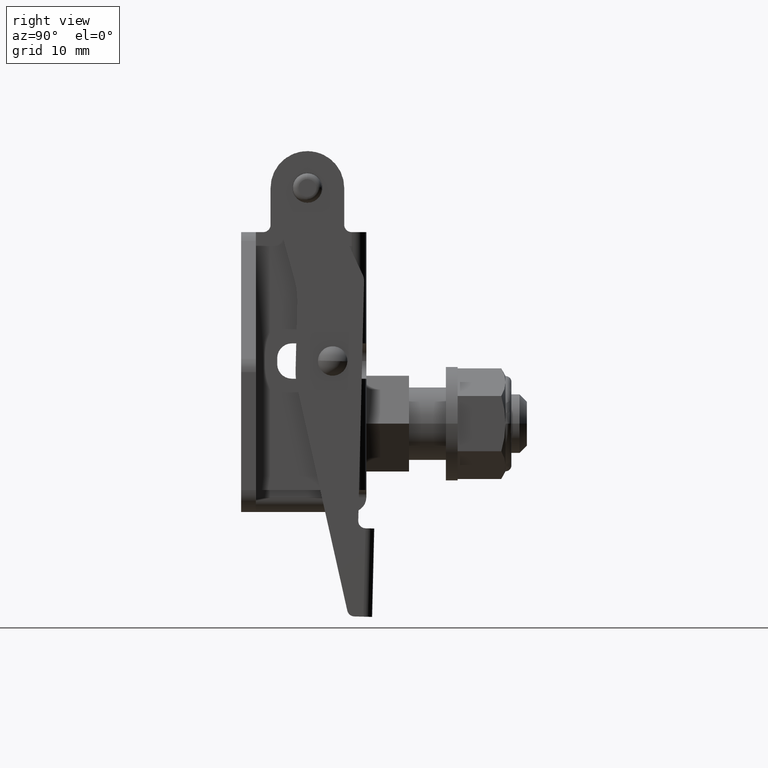
[diagram: clean part render]
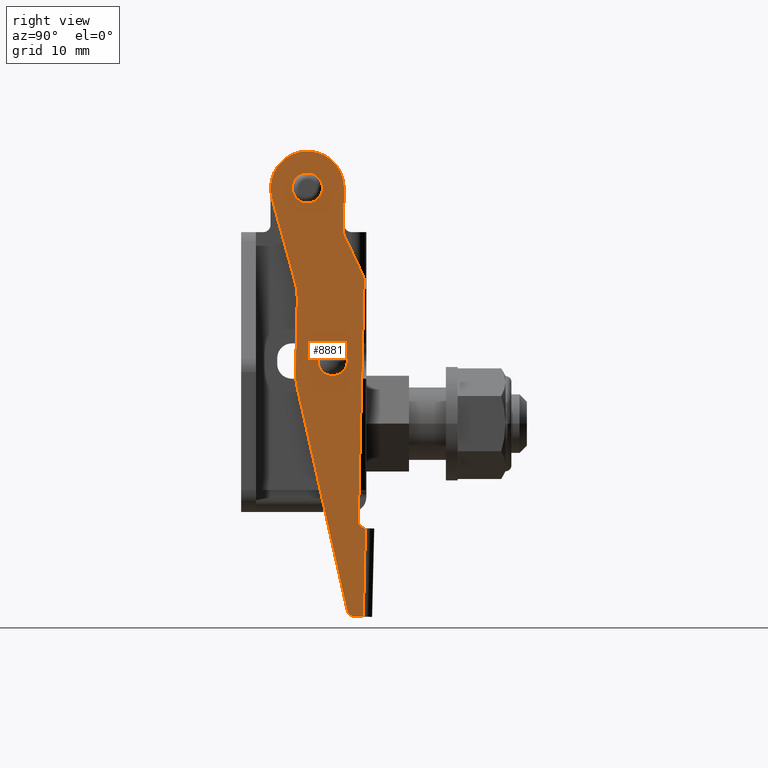
[diagram: same view with one face highlighted and labeled with its STEP entity id]
A machine part, right view. The second image highlights one B-rep face of the part: STEP entity #8881.
In plain terms, the highlighted planar face has unit normal (1, 0, 0).
Its self-contained STEP definition (entity closure, byte-faithful):
#55 = CIRCLE ( 'NONE', #6461, 2.049999999999999800 ) ;
#97 = CARTESIAN_POINT ( 'NONE',  ( 17.70000000000000300, -4.787012149253359700, -1.443784846471493700 ) ) ;
#139 = VECTOR ( 'NONE', #2047, 1000.000000000000000 ) ;
#156 = AXIS2_PLACEMENT_3D ( 'NONE', #3478, #8922, #4264 ) ;
#200 = CARTESIAN_POINT ( 'NONE',  ( 17.70000000000000300, 0.0000000000000000000, 4.999999999999997300 ) ) ;
#251 = DIRECTION ( 'NONE',  ( -1.000000000000000000, -0.0000000000000000000, -0.0000000000000000000 ) ) ;
#383 = VERTEX_POINT ( 'NONE', #692 ) ;
#398 = VERTEX_POINT ( 'NONE', #2242 ) ;
#492 = ORIENTED_EDGE ( 'NONE', *, *, #7927, .T. ) ;
#510 = AXIS2_PLACEMENT_3D ( 'NONE', #6882, #2240, #7674 ) ;
#585 = CARTESIAN_POINT ( 'NONE',  ( 17.70000000000000600, 2.000000000000001800, -23.39999999999999900 ) ) ;
#616 = DIRECTION ( 'NONE',  ( 1.000000000000000000, 0.0000000000000000000, 0.0000000000000000000 ) ) ;
#634 = FACE_BOUND ( 'NONE', #4752, .T. ) ;
#637 = AXIS2_PLACEMENT_3D ( 'NONE', #1817, #7254, #2607 ) ;
#679 = CARTESIAN_POINT ( 'NONE',  ( 17.70000000000000300, 0.0000000000000000000, 0.0000000000000000000 ) ) ;
#692 = CARTESIAN_POINT ( 'NONE',  ( 17.70000000000000300, -1.425975701527598400, -12.58763522602583000 ) ) ;
#697 = LINE ( 'NONE', #4567, #6636 ) ;
#744 = DIRECTION ( 'NONE',  ( 1.000000000000000000, 0.0000000000000000000, 0.0000000000000000000 ) ) ;
#779 = CARTESIAN_POINT ( 'NONE',  ( 17.70000000000000300, -11.00000000003430100, -15.47520491896888500 ) ) ;
#799 = ORIENTED_EDGE ( 'NONE', *, *, #7548, .T. ) ;
#873 = VERTEX_POINT ( 'NONE', #6274 ) ;
#879 = VERTEX_POINT ( 'NONE', #6239 ) ;
#898 = CIRCLE ( 'NONE', #4403, 10.00000000000000000 ) ;
#914 = ORIENTED_EDGE ( 'NONE', *, *, #6797, .T. ) ;
#1028 = VERTEX_POINT ( 'NONE', #8378 ) ;
#1133 = ORIENTED_EDGE ( 'NONE', *, *, #3298, .T. ) ;
#1268 = ORIENTED_EDGE ( 'NONE', *, *, #8208, .T. ) ;
#1455 = DIRECTION ( 'NONE',  ( 0.0000000000000000000, 0.0000000000000000000, -1.000000000000000000 ) ) ;
#1553 = DIRECTION ( 'NONE',  ( 0.0000000000000000000, 3.469446951953614200E-015, -1.000000000000000000 ) ) ;
#1595 = ORIENTED_EDGE ( 'NONE', *, *, #8945, .F. ) ;
#1817 = CARTESIAN_POINT ( 'NONE',  ( 17.70000000000000300, 0.0000000000000000000, 0.0000000000000000000 ) ) ;
#1873 = CIRCLE ( 'NONE', #7654, 2.000000000000000000 ) ;
#1968 = CARTESIAN_POINT ( 'NONE',  ( 17.70000000000000300, -1.000000000034300800, -13.99999999998687100 ) ) ;
#2047 = DIRECTION ( 'NONE',  ( -0.0000000000000000000, 1.000000000000000000, 2.168404344912452900E-015 ) ) ;
#2065 = ORIENTED_EDGE ( 'NONE', *, *, #8764, .T. ) ;
#2109 = LINE ( 'NONE', #9639, #6000 ) ;
#2138 = PLANE ( 'NONE',  #9043 ) ;
#2161 = CARTESIAN_POINT ( 'NONE',  ( 17.70000000000000300, -0.7014250014907444900, -27.19429999418933300 ) ) ;
#2213 = LINE ( 'NONE', #7490, #139 ) ;
#2240 = DIRECTION ( 'NONE',  ( 1.000000000000000000, 0.0000000000000000000, 0.0000000000000000000 ) ) ;
#2242 = CARTESIAN_POINT ( 'NONE',  ( 17.70000000000000300, 8.999999999980863300, -57.99999999989879000 ) ) ;
#2251 = VERTEX_POINT ( 'NONE', #200 ) ;
#2513 = CIRCLE ( 'NONE', #5332, 1.000000000000000900 ) ;
#2559 = CARTESIAN_POINT ( 'NONE',  ( 17.70000000000000300, 6.999999999999997300, -5.527864045017104800 ) ) ;
#2607 = DIRECTION ( 'NONE',  ( 0.0000000000000000000, 0.0000000000000000000, -1.000000000000000000 ) ) ;
#2837 = EDGE_CURVE ( 'NONE', #873, #2251, #5289, .T. ) ;
#2951 = EDGE_LOOP ( 'NONE', ( #914, #492, #5756, #799, #4655, #5350, #4653, #8800, #4080, #4672, #5437, #3506, #5252, #4570, #2065, #1133 ) ) ;
#2979 = AXIS2_PLACEMENT_3D ( 'NONE', #9168, #4519, #9961 ) ;
#3162 = VERTEX_POINT ( 'NONE', #4459 ) ;
#3169 = CARTESIAN_POINT ( 'NONE',  ( 17.70000000000000300, 8.999999999980863300, -45.99999999990159000 ) ) ;
#3181 = CARTESIAN_POINT ( 'NONE',  ( 17.70000000000000300, 7.788854381985109000, -11.57770876401697400 ) ) ;
#3298 = EDGE_CURVE ( 'NONE', #383, #1028, #898, .T. ) ;
#3308 = CARTESIAN_POINT ( 'NONE',  ( 17.70000000000000300, 8.999999999980863300, -45.99999999990159000 ) ) ;
#3309 = CARTESIAN_POINT ( 'NONE',  ( 17.70000000000000300, -1.000000000034299200, -24.76894374383850200 ) ) ;
#3345 = DIRECTION ( 'NONE',  ( 0.0000000000000000000, 1.734723475976807100E-015, -1.000000000000000000 ) ) ;
#3478 = CARTESIAN_POINT ( 'NONE',  ( 17.70000000000000300, 5.999999999983190300, -12.47213595501271800 ) ) ;
#3506 = ORIENTED_EDGE ( 'NONE', *, *, #6692, .T. ) ;
#3788 = DIRECTION ( 'NONE',  ( -1.000000000000000000, -0.0000000000000000000, -0.0000000000000000000 ) ) ;
#3802 = CIRCLE ( 'NONE', #2979, 4.999999999999997300 ) ;
#3803 = CIRCLE ( 'NONE', #8850, 1.000000000000000900 ) ;
#3844 = CARTESIAN_POINT ( 'NONE',  ( 17.70000000000000300, 8.999999999983188600, -44.99999999990159000 ) ) ;
#3910 = EDGE_CURVE ( 'NONE', #3162, #8028, #9283, .T. ) ;
#4049 = CARTESIAN_POINT ( 'NONE',  ( 17.70000000000000300, 7.999999999983186800, -45.99999999990159000 ) ) ;
#4080 = ORIENTED_EDGE ( 'NONE', *, *, #3910, .T. ) ;
#4086 = DIRECTION ( 'NONE',  ( 0.0000000000000000000, 1.020425574107425900E-016, 1.000000000000000000 ) ) ;
#4096 = VERTEX_POINT ( 'NONE', #7337 ) ;
#4205 = CARTESIAN_POINT ( 'NONE',  ( 17.70000000000000300, 7.780776406299904300, -57.99999999989879700 ) ) ;
#4241 = ORIENTED_EDGE ( 'NONE', *, *, #5643, .F. ) ;
#4264 = DIRECTION ( 'NONE',  ( 0.0000000000000000000, 0.0000000000000000000, -1.000000000000000000 ) ) ;
#4299 = AXIS2_PLACEMENT_3D ( 'NONE', #5409, #744, #6180 ) ;
#4325 = CARTESIAN_POINT ( 'NONE',  ( 17.70000000000000300, 7.780776406299902500, -56.99999999989879700 ) ) ;
#4403 = AXIS2_PLACEMENT_3D ( 'NONE', #779, #6202, #1553 ) ;
#4450 = LINE ( 'NONE', #7150, #8326 ) ;
#4459 = CARTESIAN_POINT ( 'NONE',  ( 17.70000000000000300, 7.999999999983190300, -12.47213595501271800 ) ) ;
#4519 = DIRECTION ( 'NONE',  ( 1.000000000000000000, 0.0000000000000000000, 0.0000000000000000000 ) ) ;
#4564 = VERTEX_POINT ( 'NONE', #8867 ) ;
#4567 = CARTESIAN_POINT ( 'NONE',  ( 17.70000000000000300, 7.999999999983190300, -12.00000000001560000 ) ) ;
#4570 = ORIENTED_EDGE ( 'NONE', *, *, #8493, .T. ) ;
#4629 = DIRECTION ( 'NONE',  ( 0.0000000000000000000, 0.0000000000000000000, -1.000000000000000000 ) ) ;
#4631 = AXIS2_PLACEMENT_3D ( 'NONE', #4908, #251, #5694 ) ;
#4653 = ORIENTED_EDGE ( 'NONE', *, *, #4815, .T. ) ;
#4655 = ORIENTED_EDGE ( 'NONE', *, *, #8411, .T. ) ;
#4672 = ORIENTED_EDGE ( 'NONE', *, *, #4784, .T. ) ;
#4737 = DIRECTION ( 'NONE',  ( -0.0000000000000000000, 0.0000000000000000000, 1.000000000000000000 ) ) ;
#4752 = EDGE_LOOP ( 'NONE', ( #1268, #5913 ) ) ;
#4784 = EDGE_CURVE ( 'NONE', #8028, #4096, #697, .T. ) ;
#4815 = EDGE_CURVE ( 'NONE', #9763, #8000, #2513, .T. ) ;
#4893 = CIRCLE ( 'NONE', #6941, 2.000000000000001800 ) ;
#4908 = CARTESIAN_POINT ( 'NONE',  ( 17.70000000000000600, 4.000000000000000000, -23.39999999999999900 ) ) ;
#5004 = VERTEX_POINT ( 'NONE', #8027 ) ;
#5035 = VECTOR ( 'NONE', #8195, 1000.000000000000000 ) ;
#5099 = DIRECTION ( 'NONE',  ( 0.0000000000000000000, 0.0000000000000000000, -1.000000000000000000 ) ) ;
#5252 = ORIENTED_EDGE ( 'NONE', *, *, #2837, .T. ) ;
#5258 = VECTOR ( 'NONE', #7475, 1000.000000000000100 ) ;
#5289 = CIRCLE ( 'NONE', #637, 4.999999999999997300 ) ;
#5332 = AXIS2_PLACEMENT_3D ( 'NONE', #3844, #9285, #4629 ) ;
#5350 = ORIENTED_EDGE ( 'NONE', *, *, #8730, .T. ) ;
#5409 = CARTESIAN_POINT ( 'NONE',  ( 17.70000000000000300, 8.999999999965700300, -24.76894374383850200 ) ) ;
#5437 = ORIENTED_EDGE ( 'NONE', *, *, #6212, .T. ) ;
#5643 = EDGE_CURVE ( 'NONE', #8740, #5004, #55, .T. ) ;
#5694 = DIRECTION ( 'NONE',  ( 0.0000000000000000000, 0.0000000000000000000, 1.000000000000000000 ) ) ;
#5749 = CIRCLE ( 'NONE', #4631, 2.000000000000001800 ) ;
#5756 = ORIENTED_EDGE ( 'NONE', *, *, #6162, .T. ) ;
#5840 = VERTEX_POINT ( 'NONE', #3309 ) ;
#5913 = ORIENTED_EDGE ( 'NONE', *, *, #7168, .T. ) ;
#6000 = VECTOR ( 'NONE', #7301, 1000.000000000000000 ) ;
#6047 = DIRECTION ( 'NONE',  ( 0.0000000000000000000, 0.0000000000000000000, -1.000000000000000000 ) ) ;
#6101 = DIRECTION ( 'NONE',  ( 1.000000000000000000, 0.0000000000000000000, 0.0000000000000000000 ) ) ;
#6162 = EDGE_CURVE ( 'NONE', #8892, #879, #4450, .T. ) ;
#6180 = DIRECTION ( 'NONE',  ( 0.0000000000000000000, 0.0000000000000000000, -1.000000000000000000 ) ) ;
#6202 = DIRECTION ( 'NONE',  ( -1.000000000000000000, -0.0000000000000000000, -0.0000000000000000000 ) ) ;
#6212 = EDGE_CURVE ( 'NONE', #4096, #6332, #1873, .T. ) ;
#6239 = CARTESIAN_POINT ( 'NONE',  ( 17.70000000000000300, 6.810633906154256700, -57.24253562493387900 ) ) ;
#6274 = CARTESIAN_POINT ( 'NONE',  ( 17.70000000000000300, 4.999999999999996400, 6.123233995741806100E-016 ) ) ;
#6332 = VERTEX_POINT ( 'NONE', #9987 ) ;
#6333 = CIRCLE ( 'NONE', #510, 2.049999999999999800 ) ;
#6428 = CARTESIAN_POINT ( 'NONE',  ( 17.70000000000000300, -4.787012149253359700, -1.443784846471490200 ) ) ;
#6461 = AXIS2_PLACEMENT_3D ( 'NONE', #679, #6101, #1455 ) ;
#6583 = VECTOR ( 'NONE', #4086, 1000.000000000000000 ) ;
#6636 = VECTOR ( 'NONE', #9220, 1000.000000000000200 ) ;
#6692 = EDGE_CURVE ( 'NONE', #6332, #873, #2109, .T. ) ;
#6797 = EDGE_CURVE ( 'NONE', #1028, #5840, #7333, .T. ) ;
#6882 = CARTESIAN_POINT ( 'NONE',  ( 17.70000000000000300, 0.0000000000000000000, 0.0000000000000000000 ) ) ;
#6902 = VERTEX_POINT ( 'NONE', #4205 ) ;
#6941 = AXIS2_PLACEMENT_3D ( 'NONE', #8438, #3788, #9231 ) ;
#7150 = CARTESIAN_POINT ( 'NONE',  ( 17.70000000000000300, -1.000000000034299000, -26.00000000000857600 ) ) ;
#7168 = EDGE_CURVE ( 'NONE', #4564, #7780, #4893, .T. ) ;
#7254 = DIRECTION ( 'NONE',  ( 1.000000000000000000, 0.0000000000000000000, 0.0000000000000000000 ) ) ;
#7301 = DIRECTION ( 'NONE',  ( 0.0000000000000000000, -1.445602896643911800E-016, 1.000000000000000000 ) ) ;
#7304 = LINE ( 'NONE', #97, #5258 ) ;
#7333 = LINE ( 'NONE', #1968, #5035 ) ;
#7337 = CARTESIAN_POINT ( 'NONE',  ( 17.70000000000000300, 5.211145617998078600, -6.422291236012849700 ) ) ;
#7428 = EDGE_CURVE ( 'NONE', #8000, #3162, #9165, .T. ) ;
#7446 = CIRCLE ( 'NONE', #4299, 9.999999999999998200 ) ;
#7475 = DIRECTION ( 'NONE',  ( 0.0000000000000000000, 0.2887569692943057800, -0.9574024298506701400 ) ) ;
#7490 = CARTESIAN_POINT ( 'NONE',  ( 17.70000000000000300, 10.19999999998086300, -57.99999999989879000 ) ) ;
#7548 = EDGE_CURVE ( 'NONE', #879, #6902, #3803, .T. ) ;
#7573 = CARTESIAN_POINT ( 'NONE',  ( 17.70000000000000300, 0.0000000000000000000, 0.0000000000000000000 ) ) ;
#7654 = AXIS2_PLACEMENT_3D ( 'NONE', #2559, #7984, #3345 ) ;
#7674 = DIRECTION ( 'NONE',  ( 0.0000000000000000000, 0.0000000000000000000, -1.000000000000000000 ) ) ;
#7780 = VERTEX_POINT ( 'NONE', #585 ) ;
#7801 = VECTOR ( 'NONE', #4737, 1000.000000000000000 ) ;
#7924 = DIRECTION ( 'NONE',  ( 0.0000000000000000000, 0.2425356250350829700, -0.9701425001456444000 ) ) ;
#7927 = EDGE_CURVE ( 'NONE', #5840, #8892, #7446, .T. ) ;
#7984 = DIRECTION ( 'NONE',  ( -1.000000000000000000, -0.0000000000000000000, -0.0000000000000000000 ) ) ;
#8000 = VERTEX_POINT ( 'NONE', #9384 ) ;
#8027 = CARTESIAN_POINT ( 'NONE',  ( 17.70000000000000300, 2.510525938252073700E-016, 2.049999999999999800 ) ) ;
#8028 = VERTEX_POINT ( 'NONE', #3181 ) ;
#8029 = LINE ( 'NONE', #3169, #7801 ) ;
#8195 = DIRECTION ( 'NONE',  ( 0.0000000000000000000, 1.445602896644724600E-016, -1.000000000000000000 ) ) ;
#8208 = EDGE_CURVE ( 'NONE', #7780, #4564, #5749, .T. ) ;
#8326 = VECTOR ( 'NONE', #7924, 1000.000000000000000 ) ;
#8378 = CARTESIAN_POINT ( 'NONE',  ( 17.70000000000000300, -1.000000000034300600, -15.47520491896888300 ) ) ;
#8411 = EDGE_CURVE ( 'NONE', #6902, #398, #2213, .T. ) ;
#8438 = CARTESIAN_POINT ( 'NONE',  ( 17.70000000000000600, 4.000000000000000000, -23.39999999999999900 ) ) ;
#8493 = EDGE_CURVE ( 'NONE', #2251, #9264, #3802, .T. ) ;
#8610 = CARTESIAN_POINT ( 'NONE',  ( 17.70000000000000300, 0.0000000000000000000, -2.049999999999999800 ) ) ;
#8658 = FACE_OUTER_BOUND ( 'NONE', #2951, .T. ) ;
#8730 = EDGE_CURVE ( 'NONE', #398, #9763, #8029, .T. ) ;
#8740 = VERTEX_POINT ( 'NONE', #8610 ) ;
#8764 = EDGE_CURVE ( 'NONE', #9264, #383, #7304, .T. ) ;
#8800 = ORIENTED_EDGE ( 'NONE', *, *, #7428, .T. ) ;
#8850 = AXIS2_PLACEMENT_3D ( 'NONE', #4325, #9769, #5099 ) ;
#8867 = CARTESIAN_POINT ( 'NONE',  ( 17.70000000000000600, 5.999999999999999100, -23.39999999999999900 ) ) ;
#8881 = ADVANCED_FACE ( 'NONE', ( #634, #8899, #8658 ), #2138, .T. ) ;
#8892 = VERTEX_POINT ( 'NONE', #2161 ) ;
#8899 = FACE_BOUND ( 'NONE', #9881, .T. ) ;
#8922 = DIRECTION ( 'NONE',  ( 1.000000000000000000, 0.0000000000000000000, 0.0000000000000000000 ) ) ;
#8945 = EDGE_CURVE ( 'NONE', #5004, #8740, #6333, .T. ) ;
#9043 = AXIS2_PLACEMENT_3D ( 'NONE', #7573, #616, #6047 ) ;
#9165 = LINE ( 'NONE', #4049, #6583 ) ;
#9168 = CARTESIAN_POINT ( 'NONE',  ( 17.70000000000000300, 0.0000000000000000000, 0.0000000000000000000 ) ) ;
#9220 = DIRECTION ( 'NONE',  ( 0.0000000000000000000, -0.4472135954978716000, 0.8944271910009591300 ) ) ;
#9231 = DIRECTION ( 'NONE',  ( 0.0000000000000000000, 0.0000000000000000000, 1.000000000000000000 ) ) ;
#9264 = VERTEX_POINT ( 'NONE', #6428 ) ;
#9283 = CIRCLE ( 'NONE', #156, 2.000000000000000000 ) ;
#9285 = DIRECTION ( 'NONE',  ( -1.000000000000000000, -0.0000000000000000000, -0.0000000000000000000 ) ) ;
#9384 = CARTESIAN_POINT ( 'NONE',  ( 17.70000000000000300, 7.999999999983186800, -44.99999999990159000 ) ) ;
#9639 = CARTESIAN_POINT ( 'NONE',  ( 17.70000000000000300, 4.999999999999997300, -6.000000000014225100 ) ) ;
#9763 = VERTEX_POINT ( 'NONE', #3308 ) ;
#9769 = DIRECTION ( 'NONE',  ( 1.000000000000000000, 0.0000000000000000000, 0.0000000000000000000 ) ) ;
#9881 = EDGE_LOOP ( 'NONE', ( #4241, #1595 ) ) ;
#9961 = DIRECTION ( 'NONE',  ( 0.0000000000000000000, 0.0000000000000000000, -1.000000000000000000 ) ) ;
#9987 = CARTESIAN_POINT ( 'NONE',  ( 17.70000000000000300, 4.999999999999997300, -5.527864045017104800 ) ) ;